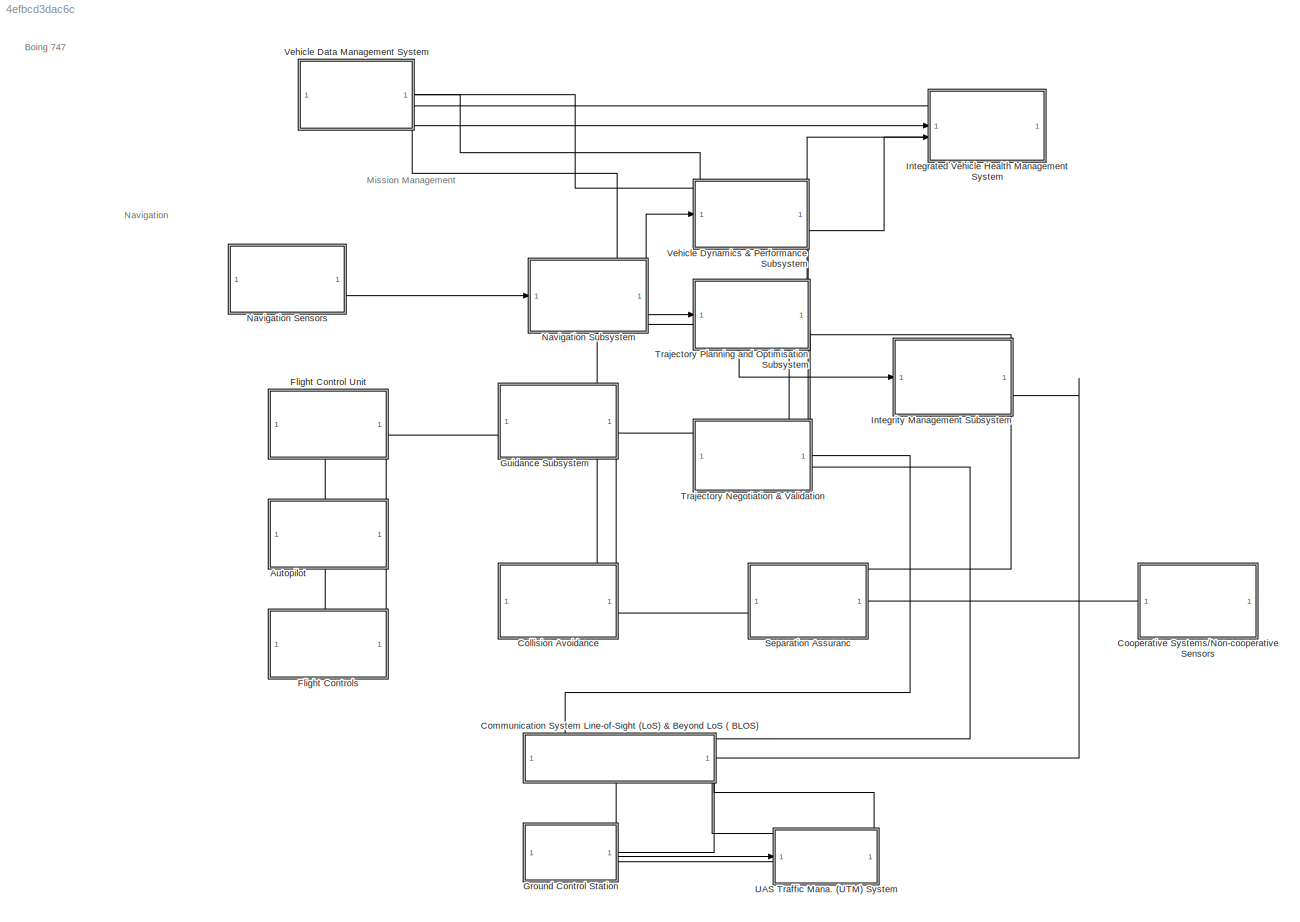
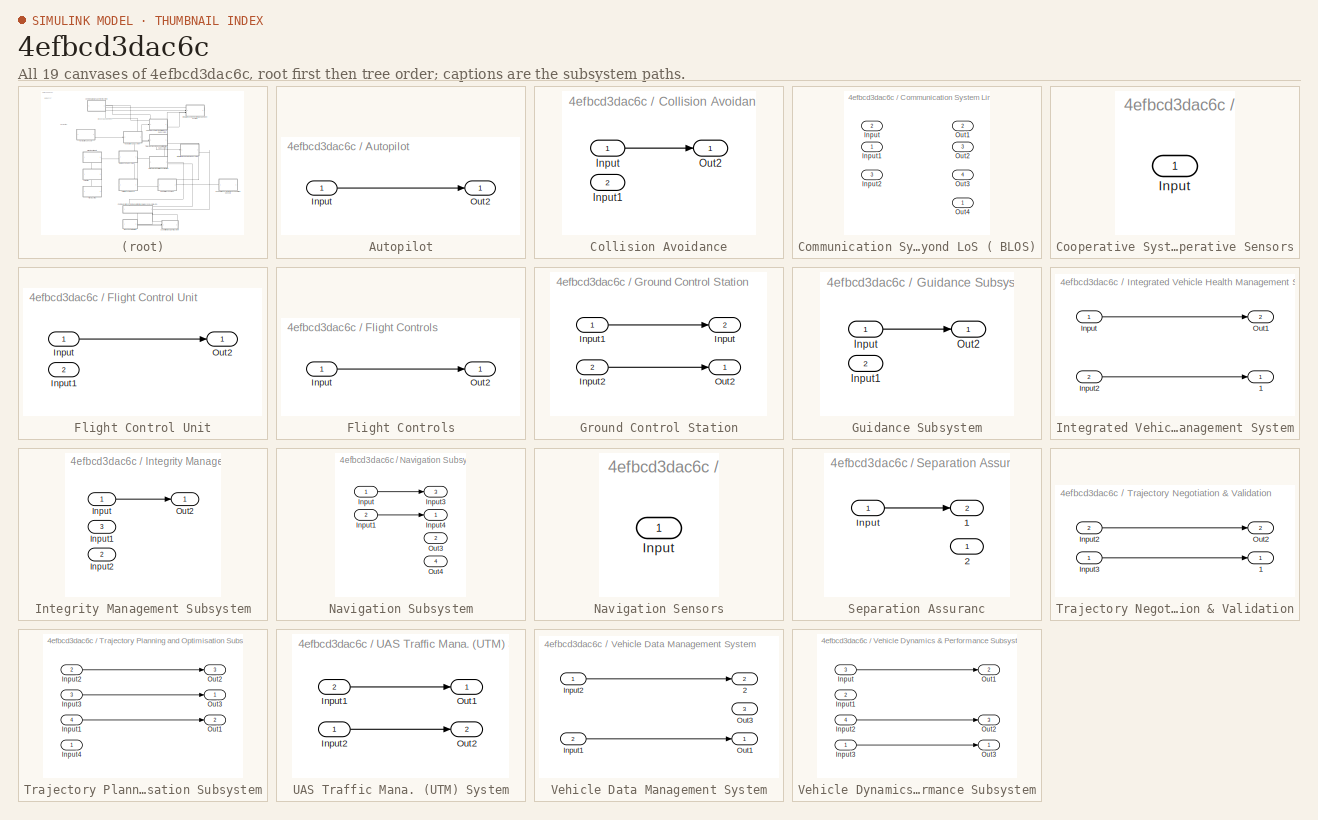
[diagram: thumbnail index - all 19 canvases of the model, root first then tree order]
MODEL slx_4efbcd3dac6c
KIND model
CONFIG AbsTol = auto
CONFIG EnableMultiTasking = off
CONFIG FixedStep = auto
CONFIG MaxStep = auto
CONFIG MinStep = auto
CONFIG RelTol = 1e-3
CONFIG SampleTimeConstraint = Unconstrained
CONFIG SolverName = VariableStepAuto
CONFIG StartTime = 0.0
CONFIG StopTime = 10.0
BLOCK [SubSystem] Autopilot
  NameLocation = left
  PortSchema = {"entries":[{"content":{"sides":[{"content":{"connectorIds":[]},"type":"ConnectorPlacement.EquallySpacedRectSide","uuid":"7c03228e-e6de-4210-83e4-dc60ea5d03ec"},{"content":{"connectorIds":[],"side":"RIGHT"},"type":"ConnectorPlacement.EquallySpacedRectSide","uuid":"398f5b5b-7985-47d4-80b4-f710280625a6"},{"content":{"connectorIds":["In1"],"side":"TOP"},"type":"ConnectorPlacement.EquallySpacedRectSid...<+384ch>
BLOCK [Inport] Autopilot/Input
BLOCK [Outport] Autopilot/Out2
BLOCK [SubSystem] Collision Avoidance
  PortSchema = {"entries":[{"content":{"sides":[{"content":{"connectorIds":["In1"]},"type":"ConnectorPlacement.EquallySpacedRectSide","uuid":"8816de1e-4171-47af-bbd0-c7093bdd2ec4"},{"content":{"connectorIds":["In2"],"side":"RIGHT"},"type":"ConnectorPlacement.EquallySpacedRectSide","uuid":"4ec5b307-27a2-4754-b3e3-e34b35b208c2"},{"content":{"connectorIds":["Out1"],"side":"TOP"},"type":"ConnectorPlacement.EquallySp...<+389ch>
BLOCK [Inport] Collision Avoidance/Input
BLOCK [Inport] Collision Avoidance/Input1
  Port = 2
BLOCK [Outport] Collision Avoidance/Out2
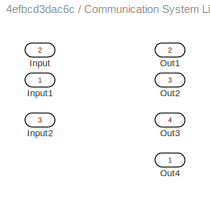
BLOCK [SubSystem] Communication System Line-of-Sight (LoS) & Beyond LoS ( BLOS)
  NameLocation = left
  PortSchema = {"entries":[{"content":{"sides":[{"content":{"connectorIds":[]},"type":"ConnectorPlacement.EquallySpacedRectSide","uuid":"8816de1e-4171-47af-bbd0-c7093bdd2ec4"},{"content":{"connectorIds":["Out1"],"side":"RIGHT"},"type":"ConnectorPlacement.EquallySpacedRectSide","uuid":"4ec5b307-27a2-4754-b3e3-e34b35b208c2"},{"content":{"connectorIds":["In1","Out4"],"side":"TOP"},"type":"ConnectorPlacement.Equally...<+416ch>
BLOCK [Inport] Communication System Line-of-Sight (LoS) & Beyond LoS ( BLOS)/Input
  Port = 2
BLOCK [Inport] Communication System Line-of-Sight (LoS) & Beyond LoS ( BLOS)/Input1
BLOCK [Inport] Communication System Line-of-Sight (LoS) & Beyond LoS ( BLOS)/Input2
  Port = 3
BLOCK [Outport] Communication System Line-of-Sight (LoS) & Beyond LoS ( BLOS)/Out1
  Port = 2
BLOCK [Outport] Communication System Line-of-Sight (LoS) & Beyond LoS ( BLOS)/Out2
  Port = 3
BLOCK [Outport] Communication System Line-of-Sight (LoS) & Beyond LoS ( BLOS)/Out3
  Port = 4
BLOCK [Outport] Communication System Line-of-Sight (LoS) & Beyond LoS ( BLOS)/Out4
BLOCK [SubSystem] Cooperative Systems//Non-cooperative Sensors
  PortSchema = {"entries":[{"content":{"sides":[{"content":{"connectorIds":["Out1"]},"type":"ConnectorPlacement.EquallySpacedRectSide","uuid":"8816de1e-4171-47af-bbd0-c7093bdd2ec4"},{"content":{"connectorIds":[],"side":"RIGHT"},"type":"ConnectorPlacement.EquallySpacedRectSide","uuid":"4ec5b307-27a2-4754-b3e3-e34b35b208c2"},{"content":{"connectorIds":[],"side":"TOP"},"type":"ConnectorPlacement.EquallySpacedRectSi...<+379ch>
BLOCK [Outport] Cooperative Systems//Non-cooperative Sensors/Input
BLOCK [SubSystem] Flight Control Unit
  NameLocation = top
  PortSchema = {"entries":[{"content":{"sides":[{"content":{"connectorIds":["In1"]},"type":"ConnectorPlacement.EquallySpacedRectSide","uuid":"7c03228e-e6de-4210-83e4-dc60ea5d03ec"},{"content":{"connectorIds":["In2"],"side":"RIGHT"},"type":"ConnectorPlacement.EquallySpacedRectSide","uuid":"398f5b5b-7985-47d4-80b4-f710280625a6"},{"content":{"connectorIds":[],"side":"TOP"},"type":"ConnectorPlacement.EquallySpacedRe...<+389ch>
BLOCK [Inport] Flight Control Unit/Input
BLOCK [Inport] Flight Control Unit/Input1
  Port = 2
BLOCK [Outport] Flight Control Unit/Out2
BLOCK [SubSystem] Flight Controls
  PortSchema = {"entries":[{"content":{"sides":[{"content":{"connectorIds":["Out1"]},"type":"ConnectorPlacement.EquallySpacedRectSide","uuid":"7c03228e-e6de-4210-83e4-dc60ea5d03ec"},{"content":{"connectorIds":[],"side":"RIGHT"},"type":"ConnectorPlacement.EquallySpacedRectSide","uuid":"398f5b5b-7985-47d4-80b4-f710280625a6"},{"content":{"connectorIds":["In1"],"side":"TOP"},"type":"ConnectorPlacement.EquallySpacedR...<+384ch>
BLOCK [Inport] Flight Controls/Input
BLOCK [Outport] Flight Controls/Out2
BLOCK [SubSystem] Ground Control Station
  NameLocation = left
  PortSchema = {"entries":[{"content":{"sides":[{"content":{"connectorIds":[]},"type":"ConnectorPlacement.EquallySpacedRectSide","uuid":"8816de1e-4171-47af-bbd0-c7093bdd2ec4"},{"content":{"connectorIds":["In2","Out1"],"side":"RIGHT"},"type":"ConnectorPlacement.EquallySpacedRectSide","uuid":"4ec5b307-27a2-4754-b3e3-e34b35b208c2"},{"content":{"connectorIds":["In1","Out2"],"side":"TOP"},"type":"ConnectorPlacement.E...<+397ch>
BLOCK [Outport] Ground Control Station/Input
  Port = 2
BLOCK [Inport] Ground Control Station/Input1
BLOCK [Inport] Ground Control Station/Input2
  Port = 2
BLOCK [Outport] Ground Control Station/Out2
BLOCK [SubSystem] Guidance Subsystem
  NameLocation = top
  PortSchema = {"entries":[{"content":{"sides":[{"content":{"connectorIds":["Out1"]},"type":"ConnectorPlacement.EquallySpacedRectSide","uuid":"8816de1e-4171-47af-bbd0-c7093bdd2ec4"},{"content":{"connectorIds":["In2"],"side":"RIGHT"},"type":"ConnectorPlacement.EquallySpacedRectSide","uuid":"4ec5b307-27a2-4754-b3e3-e34b35b208c2"},{"content":{"connectorIds":[],"side":"TOP"},"type":"ConnectorPlacement.EquallySpacedR...<+389ch>
BLOCK [Inport] Guidance Subsystem/Input
BLOCK [Inport] Guidance Subsystem/Input1
  Port = 2
BLOCK [Outport] Guidance Subsystem/Out2
BLOCK [SubSystem] Integrated Vehicle Health Management System
  NameLocation = right
  PortSchema = {"entries":[{"content":{"sides":[{"content":{"connectorIds":["Out1","In1","Out2","In2"]},"type":"ConnectorPlacement.EquallySpacedRectSide","uuid":"bd36125d-75c5-4143-b99c-3e4a87d10701"},{"content":{"connectorIds":[],"side":"RIGHT"},"type":"ConnectorPlacement.EquallySpacedRectSide","uuid":"e6754b16-36a5-4be2-b98d-b46917597dce"},{"content":{"connectorIds":[],"side":"TOP"},"type":"ConnectorPlacement....<+398ch>
BLOCK [Outport] Integrated Vehicle Health Management System/1
BLOCK [Inport] Integrated Vehicle Health Management System/Input
BLOCK [Inport] Integrated Vehicle Health Management System/Input2
  Port = 2
BLOCK [Outport] Integrated Vehicle Health Management System/Out1
  Port = 2
BLOCK [SubSystem] Integrity Management Subsystem
  NameLocation = right
  PortSchema = {"entries":[{"content":{"sides":[{"content":{"connectorIds":["In1"]},"type":"ConnectorPlacement.EquallySpacedRectSide","uuid":"8816de1e-4171-47af-bbd0-c7093bdd2ec4"},{"content":{"connectorIds":["In3"],"side":"RIGHT"},"type":"ConnectorPlacement.EquallySpacedRectSide","uuid":"4ec5b307-27a2-4754-b3e3-e34b35b208c2"},{"content":{"connectorIds":["Out1"],"side":"TOP"},"type":"ConnectorPlacement.EquallySp...<+394ch>
BLOCK [Inport] Integrity Management Subsystem/Input
BLOCK [Inport] Integrity Management Subsystem/Input1
  Port = 3
BLOCK [Inport] Integrity Management Subsystem/Input2
  Port = 2
BLOCK [Outport] Integrity Management Subsystem/Out2
BLOCK [SubSystem] Navigation Sensors
  NameLocation = left
BLOCK [Outport] Navigation Sensors/Input
BLOCK [SubSystem] Navigation Subsystem
  NameLocation = left
  PortSchema = {"entries":[{"content":{"sides":[{"content":{"connectorIds":["In1","Out4"]},"type":"ConnectorPlacement.EquallySpacedRectSide","uuid":"8816de1e-4171-47af-bbd0-c7093bdd2ec4"},{"content":{"connectorIds":["Out1"],"side":"RIGHT"},"type":"ConnectorPlacement.EquallySpacedRectSide","uuid":"4ec5b307-27a2-4754-b3e3-e34b35b208c2"},{"content":{"connectorIds":["In2","Out3"],"side":"TOP"},"type":"ConnectorPlace...<+409ch>
BLOCK [Inport] Navigation Subsystem/Input
BLOCK [Inport] Navigation Subsystem/Input1
  Port = 2
BLOCK [Outport] Navigation Subsystem/Input3
  Port = 3
BLOCK [Outport] Navigation Subsystem/Input4
BLOCK [Outport] Navigation Subsystem/Out3
  Port = 2
BLOCK [Outport] Navigation Subsystem/Out4
  Port = 4
BLOCK [SubSystem] Separation Assuranc
  PortSchema = {"entries":[{"content":{"sides":[{"content":{"connectorIds":["Out2"]},"type":"ConnectorPlacement.EquallySpacedRectSide","uuid":"8816de1e-4171-47af-bbd0-c7093bdd2ec4"},{"content":{"connectorIds":["In1"],"side":"RIGHT"},"type":"ConnectorPlacement.EquallySpacedRectSide","uuid":"4ec5b307-27a2-4754-b3e3-e34b35b208c2"},{"content":{"connectorIds":["Out1"],"side":"TOP"},"type":"ConnectorPlacement.EquallyS...<+390ch>
BLOCK [Outport] Separation Assuranc/1
  Port = 2
BLOCK [Outport] Separation Assuranc/2
BLOCK [Inport] Separation Assuranc/Input
BLOCK [SubSystem] Trajectory Negotiation & Validation
  NameLocation = left
  PortSchema = {"entries":[{"content":{"sides":[{"content":{"connectorIds":[]},"type":"ConnectorPlacement.EquallySpacedRectSide","uuid":"bd36125d-75c5-4143-b99c-3e4a87d10701"},{"content":{"connectorIds":["Out1","In2"],"side":"RIGHT"},"type":"ConnectorPlacement.EquallySpacedRectSide","uuid":"e6754b16-36a5-4be2-b98d-b46917597dce"},{"content":{"connectorIds":["Out2","In1"],"side":"TOP"},"type":"ConnectorPlacement.E...<+397ch>
BLOCK [Outport] Trajectory Negotiation & Validation/1
BLOCK [Inport] Trajectory Negotiation & Validation/Input2
  Port = 2
BLOCK [Inport] Trajectory Negotiation & Validation/Input3
BLOCK [Outport] Trajectory Negotiation & Validation/Out2
  Port = 2
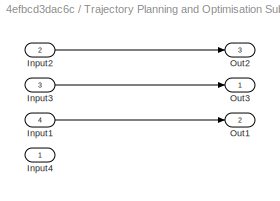
BLOCK [SubSystem] Trajectory Planning and Optimisation Subsystem
  NameLocation = right
  PortSchema = {"entries":[{"content":{"sides":[{"content":{"connectorIds":["In1","Out3"]},"type":"ConnectorPlacement.EquallySpacedRectSide","uuid":"bd36125d-75c5-4143-b99c-3e4a87d10701"},{"content":{"connectorIds":["In4"],"side":"RIGHT"},"type":"ConnectorPlacement.EquallySpacedRectSide","uuid":"e6754b16-36a5-4be2-b98d-b46917597dce"},{"content":{"connectorIds":["Out2","In2"],"side":"TOP"},"type":"ConnectorPlacem...<+414ch>
BLOCK [Inport] Trajectory Planning and Optimisation Subsystem/Input1
  Port = 4
BLOCK [Inport] Trajectory Planning and Optimisation Subsystem/Input2
  Port = 2
BLOCK [Inport] Trajectory Planning and Optimisation Subsystem/Input3
  Port = 3
BLOCK [Inport] Trajectory Planning and Optimisation Subsystem/Input4
BLOCK [Outport] Trajectory Planning and Optimisation Subsystem/Out1
  Port = 2
BLOCK [Outport] Trajectory Planning and Optimisation Subsystem/Out2
  Port = 3
BLOCK [Outport] Trajectory Planning and Optimisation Subsystem/Out3
BLOCK [SubSystem] UAS Traffic Mana. (UTM) System
  NameLocation = right
  PortSchema = {"entries":[{"content":{"sides":[{"content":{"connectorIds":["Out2","In1"]},"type":"ConnectorPlacement.EquallySpacedRectSide","uuid":"8816de1e-4171-47af-bbd0-c7093bdd2ec4"},{"content":{"connectorIds":[],"side":"RIGHT"},"type":"ConnectorPlacement.EquallySpacedRectSide","uuid":"4ec5b307-27a2-4754-b3e3-e34b35b208c2"},{"content":{"connectorIds":["In2","Out1"],"side":"TOP"},"type":"ConnectorPlacement.E...<+397ch>
BLOCK [Inport] UAS Traffic Mana. (UTM) System/Input1
  Port = 2
BLOCK [Inport] UAS Traffic Mana. (UTM) System/Input2
BLOCK [Outport] UAS Traffic Mana. (UTM) System/Out1
BLOCK [Outport] UAS Traffic Mana. (UTM) System/Out2
  Port = 2
BLOCK [SubSystem] Vehicle Data Management System
  NameLocation = left
  PortSchema = {"entries":[{"content":{"sides":[{"content":{"connectorIds":[]},"type":"ConnectorPlacement.EquallySpacedRectSide","uuid":"bd36125d-75c5-4143-b99c-3e4a87d10701"},{"content":{"connectorIds":["In1","Out1","In2","Out2"],"side":"RIGHT"},"type":"ConnectorPlacement.EquallySpacedRectSide","uuid":"e6754b16-36a5-4be2-b98d-b46917597dce"},{"content":{"connectorIds":[],"side":"TOP"},"type":"ConnectorPlacement....<+404ch>
BLOCK [Outport] Vehicle Data Management System/2
  Port = 2
BLOCK [Inport] Vehicle Data Management System/Input1
  Port = 2
BLOCK [Inport] Vehicle Data Management System/Input2
BLOCK [Outport] Vehicle Data Management System/Out1
BLOCK [Outport] Vehicle Data Management System/Out3
  Port = 3
BLOCK [SubSystem] Vehicle Dynamics & Performance Subsystem
  NameLocation = right
  PortSchema = {"entries":[{"content":{"sides":[{"content":{"connectorIds":["In1"]},"type":"ConnectorPlacement.EquallySpacedRectSide","uuid":"bd36125d-75c5-4143-b99c-3e4a87d10701"},{"content":{"connectorIds":[],"side":"RIGHT"},"type":"ConnectorPlacement.EquallySpacedRectSide","uuid":"e6754b16-36a5-4be2-b98d-b46917597dce"},{"content":{"connectorIds":["In2","Out2","In3","Out3"],"side":"TOP"},"type":"ConnectorPlace...<+415ch>
BLOCK [Inport] Vehicle Dynamics & Performance Subsystem/Input
  Port = 3
BLOCK [Inport] Vehicle Dynamics & Performance Subsystem/Input1
  Port = 2
BLOCK [Inport] Vehicle Dynamics & Performance Subsystem/Input2
  Port = 4
BLOCK [Inport] Vehicle Dynamics & Performance Subsystem/Input3
BLOCK [Outport] Vehicle Dynamics & Performance Subsystem/Out1
  Port = 2
BLOCK [Outport] Vehicle Dynamics & Performance Subsystem/Out2
  Port = 3
BLOCK [Outport] Vehicle Dynamics & Performance Subsystem/Out3
ANNOTATION (root): Boing 747
ANNOTATION (root): Mission Management
ANNOTATION (root): Navigation
LINE Autopilot/Input:1 -> Autopilot/Out2:1
LINE Autopilot:1 -> Flight Controls:1
LINE Collision Avoidance/Input:1 -> Collision Avoidance/Out2:1
LINE Collision Avoidance:1 -> Guidance Subsystem:1
LINE Communication System Line-of-Sight (LoS) & Beyond LoS ( BLOS):1 -> Integrity Management Subsystem:3
LINE Communication System Line-of-Sight (LoS) & Beyond LoS ( BLOS):2 -> Ground Control Station:1
LINE Communication System Line-of-Sight (LoS) & Beyond LoS ( BLOS):3 -> UAS Traffic Mana. (UTM) System:2
LINE Communication System Line-of-Sight (LoS) & Beyond LoS ( BLOS):4 -> Trajectory Negotiation & Validation:2
LINE Cooperative Systems//Non-cooperative Sensors:1 -> Separation Assuranc:1
LINE Flight Control Unit/Input:1 -> Flight Control Unit/Out2:1
LINE Flight Control Unit:1 -> Autopilot:1
LINE Flight Controls/Input:1 -> Flight Controls/Out2:1
LINE Flight Controls:1 -> Flight Control Unit:1
LINE Ground Control Station/Input1:1 -> Ground Control Station/Input:1
LINE Ground Control Station/Input2:1 -> Ground Control Station/Out2:1
LINE Ground Control Station:1 -> UAS Traffic Mana. (UTM) System:1
LINE Ground Control Station:2 -> Communication System Line-of-Sight (LoS) & Beyond LoS ( BLOS):2
LINE Guidance Subsystem/Input:1 -> Guidance Subsystem/Out2:1
LINE Guidance Subsystem:1 -> Flight Control Unit:2
LINE Integrated Vehicle Health Management System/Input2:1 -> Integrated Vehicle Health Management System/1:1
LINE Integrated Vehicle Health Management System/Input:1 -> Integrated Vehicle Health Management System/Out1:1
LINE Integrated Vehicle Health Management System:1 -> Vehicle Data Management System:2
LINE Integrated Vehicle Health Management System:2 -> Vehicle Dynamics & Performance Subsystem:3
LINE Integrity Management Subsystem/Input:1 -> Integrity Management Subsystem/Out2:1
LINE Integrity Management Subsystem:1 -> Trajectory Planning and Optimisation Subsystem:4
LINE Navigation Sensors:1 -> Navigation Subsystem:1
LINE Navigation Subsystem/Input1:1 -> Navigation Subsystem/Input4:1
LINE Navigation Subsystem/Input:1 -> Navigation Subsystem/Input3:1
LINE Navigation Subsystem:1 -> Trajectory Planning and Optimisation Subsystem:1
LINE Navigation Subsystem:2 -> Integrity Management Subsystem:1
LINE Navigation Subsystem:3 -> Vehicle Dynamics & Performance Subsystem:1
LINE Navigation Subsystem:4 -> Collision Avoidance:1
LINE Separation Assuranc/Input:1 -> Separation Assuranc/1:1
LINE Separation Assuranc:1 -> Integrity Management Subsystem:2
LINE Separation Assuranc:2 -> Collision Avoidance:2
LINE Trajectory Negotiation & Validation/Input2:1 -> Trajectory Negotiation & Validation/Out2:1
LINE Trajectory Negotiation & Validation/Input3:1 -> Trajectory Negotiation & Validation/1:1
LINE Trajectory Negotiation & Validation:1 -> Communication System Line-of-Sight (LoS) & Beyond LoS ( BLOS):1
LINE Trajectory Negotiation & Validation:2 -> Trajectory Planning and Optimisation Subsystem:3
LINE Trajectory Planning and Optimisation Subsystem/Input1:1 -> Trajectory Planning and Optimisation Subsystem/Out1:1
LINE Trajectory Planning and Optimisation Subsystem/Input2:1 -> Trajectory Planning and Optimisation Subsystem/Out2:1
LINE Trajectory Planning and Optimisation Subsystem/Input3:1 -> Trajectory Planning and Optimisation Subsystem/Out3:1
LINE Trajectory Planning and Optimisation Subsystem:1 -> Trajectory Negotiation & Validation:1
LINE Trajectory Planning and Optimisation Subsystem:2 -> Vehicle Dynamics & Performance Subsystem:4
LINE Trajectory Planning and Optimisation Subsystem:3 -> Guidance Subsystem:2
LINE UAS Traffic Mana. (UTM) System/Input1:1 -> UAS Traffic Mana. (UTM) System/Out1:1
LINE UAS Traffic Mana. (UTM) System/Input2:1 -> UAS Traffic Mana. (UTM) System/Out2:1
LINE UAS Traffic Mana. (UTM) System:1 -> Communication System Line-of-Sight (LoS) & Beyond LoS ( BLOS):3
LINE UAS Traffic Mana. (UTM) System:2 -> Ground Control Station:2
LINE Vehicle Data Management System/Input1:1 -> Vehicle Data Management System/Out1:1
LINE Vehicle Data Management System/Input2:1 -> Vehicle Data Management System/2:1
LINE Vehicle Data Management System:1 -> Vehicle Dynamics & Performance Subsystem:2
LINE Vehicle Data Management System:2 -> Integrated Vehicle Health Management System:1
LINE Vehicle Data Management System:3 -> Navigation Subsystem:2
LINE Vehicle Dynamics & Performance Subsystem/Input2:1 -> Vehicle Dynamics & Performance Subsystem/Out2:1
LINE Vehicle Dynamics & Performance Subsystem/Input3:1 -> Vehicle Dynamics & Performance Subsystem/Out3:1
LINE Vehicle Dynamics & Performance Subsystem/Input:1 -> Vehicle Dynamics & Performance Subsystem/Out1:1
LINE Vehicle Dynamics & Performance Subsystem:1 -> Trajectory Planning and Optimisation Subsystem:2
LINE Vehicle Dynamics & Performance Subsystem:2 -> Vehicle Data Management System:1
LINE Vehicle Dynamics & Performance Subsystem:3 -> Integrated Vehicle Health Management System:2
